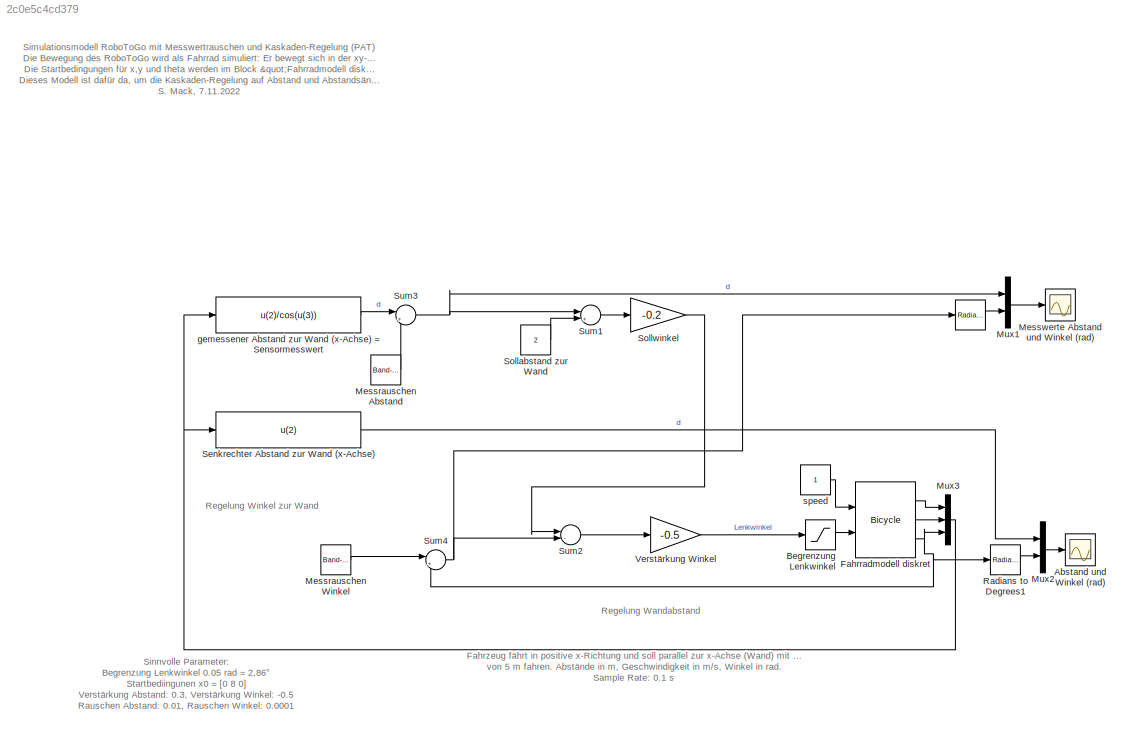
MODEL slx_2c0e5c4cd379
KIND model
CONFIG AbsTol = auto
CONFIG EnableMultiTasking = on
CONFIG FixedStep = 0.1
CONFIG MaxStep = auto
CONFIG MinStep = auto
CONFIG RelTol = 1e-3
CONFIG SampleTimeConstraint = Unconstrained
CONFIG Solver = FixedStepDiscrete
CONFIG SolverName = FixedStepDiscrete
CONFIG StartTime = 0.0
CONFIG StopTime = 100
BLOCK [Reference]    REF=simulink_extras/Transformations/Radians
to Degrees
  Ports = [1, 1]
  SourceBlock = simulink_extras/Transformations/Radians\nto Degrees
  SourceProductBaseCode = SL
  SourceType = RadiansToDegrees
BLOCK [Scope] Abstand und Winkel (rad)
  Floating = off
  NumInputPorts = 1
  Ports = [1]
  ScopeSpecificationString = Simulink.scopes.TimeScopeBlockCfg('CurrentConfiguration', extmgr.ConfigurationSet(extmgr.Configuration('Core','General UI',true),extmgr.Configuration('Core','Source UI',true),extmgr.Configuration('Sources','WiredSimulink',true,'DataLoggingVariableName','ScopeData1','DataLoggingSaveFormat','StructureWithTime','DataLoggingLimitDataPoints',true,'DataLoggingDecimation','1','DataLoggingMaxPoints','1000...<+1727ch>
BLOCK [Saturate] Begrenzung Lenkwinkel
  LowerLimit = -0.05
  UpperLimit = 0.05
BLOCK [Reference] Fahrradmodell diskret  REF=fahrradDiskr/Vehicles/Bicycle
  Ports = [2, 3]
  SourceBlock = fahrradDiskr/Vehicles/Bicycle
BLOCK [Reference] Messrauschen Abstand  REF=simulink/Sources/Band-Limited
White Noise
  Ports = [0, 1]
  SourceBlock = simulink/Sources/Band-Limited\nWhite Noise
  SourceProductBaseCode = SL
  SourceType = Band-Limited White Noise.
BLOCK [Reference] Messrauschen Winkel  REF=simulink/Sources/Band-Limited
White Noise
  Ports = [0, 1]
  SourceBlock = simulink/Sources/Band-Limited\nWhite Noise
  SourceProductBaseCode = SL
  SourceType = Band-Limited White Noise.
BLOCK [Scope] Messwerte Abstand und Winkel (rad)
  Floating = off
  NumInputPorts = 1
  Ports = [1]
  ScopeSpecificationString = Simulink.scopes.TimeScopeBlockCfg('CurrentConfiguration', extmgr.ConfigurationSet(extmgr.Configuration('Core','General UI',true),extmgr.Configuration('Core','Source UI',true),extmgr.Configuration('Sources','WiredSimulink',true,'DataLoggingSaveFormat','StructureWithTime','DataLoggingLimitDataPoints',true,'DataLoggingDecimation','1','DataLoggingMaxPoints','10000'),extmgr.Configuration('Visuals','Tim...<+1687ch>
BLOCK [Mux] Mux1
  DisplayOption = bar
  Inputs = 2
  Ports = [2, 1]
BLOCK [Mux] Mux2
  DisplayOption = bar
  Inputs = 2
  Ports = [2, 1]
BLOCK [Mux] Mux3
  DisplayOption = bar
  Inputs = 3
  Ports = [3, 1]
BLOCK [Reference] Radians to Degrees1  REF=simulink_extras/Transformations/Radians
to Degrees
  Ports = [1, 1]
  SourceBlock = simulink_extras/Transformations/Radians\nto Degrees
  SourceProductBaseCode = SL
  SourceType = RadiansToDegrees
BLOCK [Fcn] Senkrechter Abstand zur Wand (x-Achse)
  Expr = u(2)
BLOCK [Constant] Sollabstand zur Wand
  SampleTime = -1
  Value = 2
BLOCK [Gain] Sollwinkel
  Gain = -0.2
BLOCK [Sum] Sum1
  Inputs = |+-
  Ports = [2, 1]
BLOCK [Sum] Sum2
  Inputs = |-+
  Ports = [2, 1]
BLOCK [Sum] Sum3
  Inputs = |++
  Ports = [2, 1]
BLOCK [Sum] Sum4
  Inputs = |++
  Ports = [2, 1]
BLOCK [Gain] Verstärkung Winkel
  Gain = -0.5
BLOCK [Fcn] gemessener Abstand zur Wand (x-Achse) = Sensormesswert
  Expr = u(2)/cos(u(3))
BLOCK [Constant] speed
  SampleTime = -1
  VectorParams1D = off
ANNOTATION (root): Fahrzeug fährt in positive x-Richtung und soll parallel zur x-Achse (Wand) mit einem Abstand von 5 m fahren. Abstände in m, Geschwindigkeit in m/s, Winkel in rad. Sample Rate: 0.1 s
ANNOTATION (root): Sinnvolle Parameter: Begrenzung Lenkwinkel 0.05 rad = 2,86° Startbediingunen x0 = [0 8 0] Verstärkung Abstand: 0.3, Verstärkung Winkel: -0.5 Rauschen Abstand: 0.01, Rauschen Winkel: 0.0001
ANNOTATION (root): Simulationsmodell RoboToGo mit Messwertrauschen und Kaskaden-Regelung (PAT) Die Bewegung des RoboToGo wird als Fahrrad simuliert: Er bewegt sich in der xy-Ebene, befindet sich an der Position (x,y) und ist in einem Winkel Theta zur x-Achse (=Wand) ausgerichtet. Seine Geschwindigkeit beträgt v. Die unterschiedlichen Drehzahlen der beiden Antriebsräder bestimmen den Radius der Kurve, auf der sich de...<+499ch>
ANNOTATION (root): Regelung Wandabstand
ANNOTATION (root): Regelung Winkel zur Wand
LINE  :1 -> Mux1:2
LINE Begrenzung Lenkwinkel:1 -> Fahrradmodell diskret:2
LINE Fahrradmodell diskret:1 -> Mux3:1
LINE Fahrradmodell diskret:2 -> Mux3:2
NET Fahrradmodell diskret:3 -> Mux3:3, Radians to Degrees1:1, Sum4:2
LINE Messrauschen Abstand:1 -> Sum3:2
LINE Messrauschen Winkel:1 -> Sum4:1
LINE Mux1:1 -> Messwerte Abstand und Winkel (rad):1
LINE Mux2:1 -> Abstand und Winkel (rad):1
NET Mux3:1 -> Senkrechter Abstand zur Wand (x-Achse):1, gemessener Abstand zur Wand (x-Achse) = Sensormesswert:1
LINE Radians to Degrees1:1 -> Mux2:2
LINE Senkrechter Abstand zur Wand (x-Achse):1 -> Mux2:1
LINE Sollabstand zur Wand:1 -> Sum1:2
LINE Sollwinkel:1 -> Sum2:1
LINE Sum1:1 -> Sollwinkel:1
LINE Sum2:1 -> Verstärkung Winkel:1
NET Sum3:1 -> Mux1:1, Sum1:1
NET Sum4:1 ->  :1, Sum2:2
LINE Verstärkung Winkel:1 -> Begrenzung Lenkwinkel:1
LINE gemessener Abstand zur Wand (x-Achse) = Sensormesswert:1 -> Sum3:1
LINE speed:1 -> Fahrradmodell diskret:1
note: NET lines group one-source signal fan-out (src -> all destinations, sorted); 1:1 wires keep LINE
